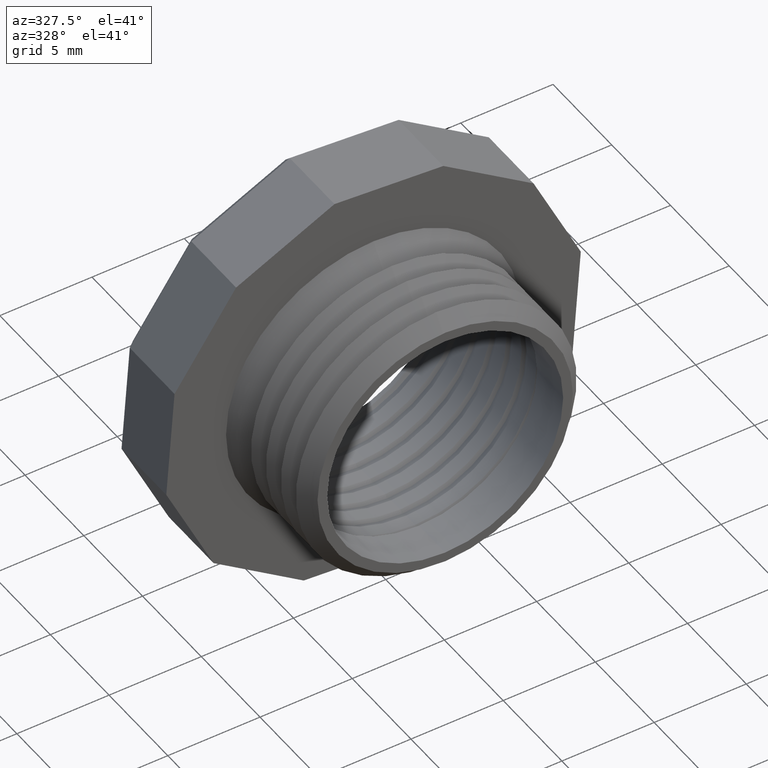
[diagram: clean part render]
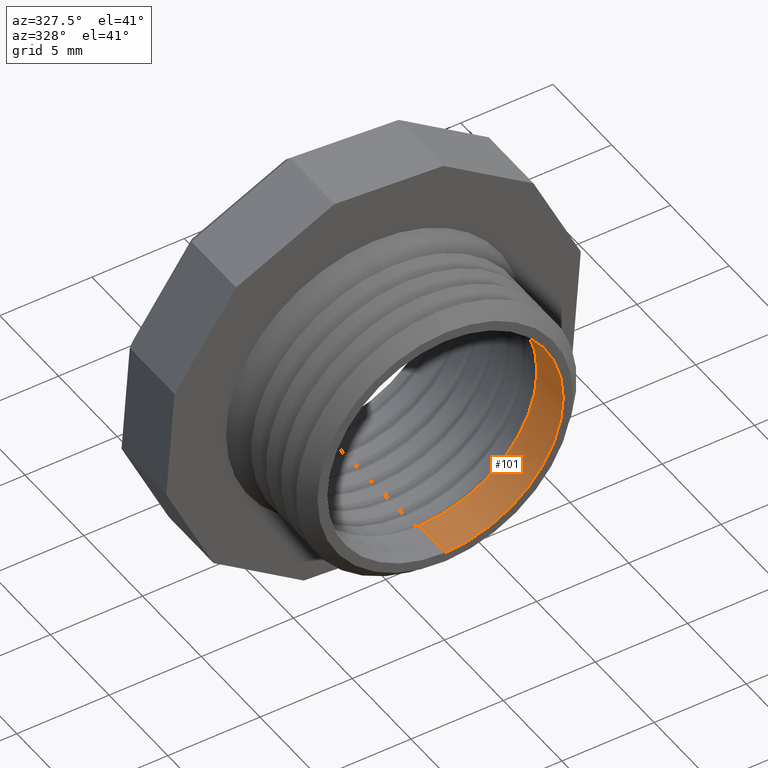
[diagram: same view with one face highlighted and labeled with its STEP entity id]
A machine part, auxiliary view. The second image highlights one B-rep face of the part: STEP entity #101.
In plain terms, the highlighted cylindrical surface (partial cylindrical patch) has radius 6.4008 mm, axis along (-0, -1, -0).
Its self-contained STEP definition (entity closure, byte-faithful):
#98 = ORIENTED_EDGE ( 'NONE', *, *, #220, .F. ) ;
#100 = ORIENTED_EDGE ( 'NONE', *, *, #657, .T. ) ;
#101 = ADVANCED_FACE ( 'NONE', ( #1037 ), #1036, .F. ) ;
#103 = ORIENTED_EDGE ( 'NONE', *, *, #639, .F. ) ;
#104 = ORIENTED_EDGE ( 'NONE', *, *, #300, .T. ) ;
#106 = EDGE_LOOP ( 'NONE', ( #103, #98, #100, #104 ) ) ;
#219 = VERTEX_POINT ( 'NONE', #1227 ) ;
#220 = EDGE_CURVE ( 'NONE', #219, #222, #1221, .T. ) ;
#222 = VERTEX_POINT ( 'NONE', #1216 ) ;
#300 = EDGE_CURVE ( 'NONE', #655, #640, #1328, .T. ) ;
#639 = EDGE_CURVE ( 'NONE', #222, #640, #2025, .T. ) ;
#640 = VERTEX_POINT ( 'NONE', #2021 ) ;
#655 = VERTEX_POINT ( 'NONE', #2061 ) ;
#657 = EDGE_CURVE ( 'NONE', #219, #655, #2060, .T. ) ;
#1031 = DIRECTION ( 'NONE',  ( 0.0000000000000000000, 0.0000000000000000000, -1.000000000000000000 ) ) ;
#1032 = DIRECTION ( 'NONE',  ( -0.0000000000000000000, -1.000000000000000000, -0.0000000000000000000 ) ) ;
#1033 = CARTESIAN_POINT ( 'NONE',  ( 0.0000000000000000000, 0.0000000000000000000, 0.0000000000000000000 ) ) ;
#1034 = AXIS2_PLACEMENT_3D ( 'NONE', #1033, #1032, #1031 ) ;
#1036 = CYLINDRICAL_SURFACE ( 'NONE', #1034, 0.2520000000000000000 ) ;
#1037 = FACE_OUTER_BOUND ( 'NONE', #106, .T. ) ;
#1216 = CARTESIAN_POINT ( 'NONE',  ( 3.086109933851330000E-017, 0.08511191928781768100, 0.2520000000000000000 ) ) ;
#1217 = DIRECTION ( 'NONE',  ( 0.0000000000000000000, 0.0000000000000000000, -1.000000000000000000 ) ) ;
#1218 = DIRECTION ( 'NONE',  ( 0.0000000000000000000, -1.000000000000000000, 0.0000000000000000000 ) ) ;
#1219 = CARTESIAN_POINT ( 'NONE',  ( 0.0000000000000000000, 0.08511191928781768100, 0.0000000000000000000 ) ) ;
#1220 = AXIS2_PLACEMENT_3D ( 'NONE', #1219, #1218, #1217 ) ;
#1221 = CIRCLE ( 'NONE', #1220, 0.2520000000000000000 ) ;
#1227 = CARTESIAN_POINT ( 'NONE',  ( 0.0000000000000000000, 0.08511191928781768100, -0.2520000000000000000 ) ) ;
#1324 = DIRECTION ( 'NONE',  ( 0.0000000000000000000, 0.0000000000000000000, -1.000000000000000000 ) ) ;
#1325 = DIRECTION ( 'NONE',  ( -0.0000000000000000000, -1.000000000000000000, -0.0000000000000000000 ) ) ;
#1326 = CARTESIAN_POINT ( 'NONE',  ( 0.0000000000000000000, -0.002445109417052043500, 0.0000000000000000000 ) ) ;
#1327 = AXIS2_PLACEMENT_3D ( 'NONE', #1326, #1325, #1324 ) ;
#1328 = CIRCLE ( 'NONE', #1327, 0.2520000000000000000 ) ;
#2021 = CARTESIAN_POINT ( 'NONE',  ( 3.086109933851330000E-017, -0.002445109417052043500, 0.2520000000000000000 ) ) ;
#2022 = DIRECTION ( 'NONE',  ( -0.0000000000000000000, -1.000000000000000000, -0.0000000000000000000 ) ) ;
#2023 = VECTOR ( 'NONE', #2022, 39.37007874015748100 ) ;
#2024 = CARTESIAN_POINT ( 'NONE',  ( 3.086109933851330000E-017, 0.0000000000000000000, 0.2520000000000000000 ) ) ;
#2025 = LINE ( 'NONE', #2024, #2023 ) ;
#2057 = DIRECTION ( 'NONE',  ( -0.0000000000000000000, -1.000000000000000000, -0.0000000000000000000 ) ) ;
#2058 = VECTOR ( 'NONE', #2057, 39.37007874015748100 ) ;
#2059 = CARTESIAN_POINT ( 'NONE',  ( 0.0000000000000000000, 0.0000000000000000000, -0.2520000000000000000 ) ) ;
#2060 = LINE ( 'NONE', #2059, #2058 ) ;
#2061 = CARTESIAN_POINT ( 'NONE',  ( 0.0000000000000000000, -0.002445109417052043500, -0.2520000000000000000 ) ) ;